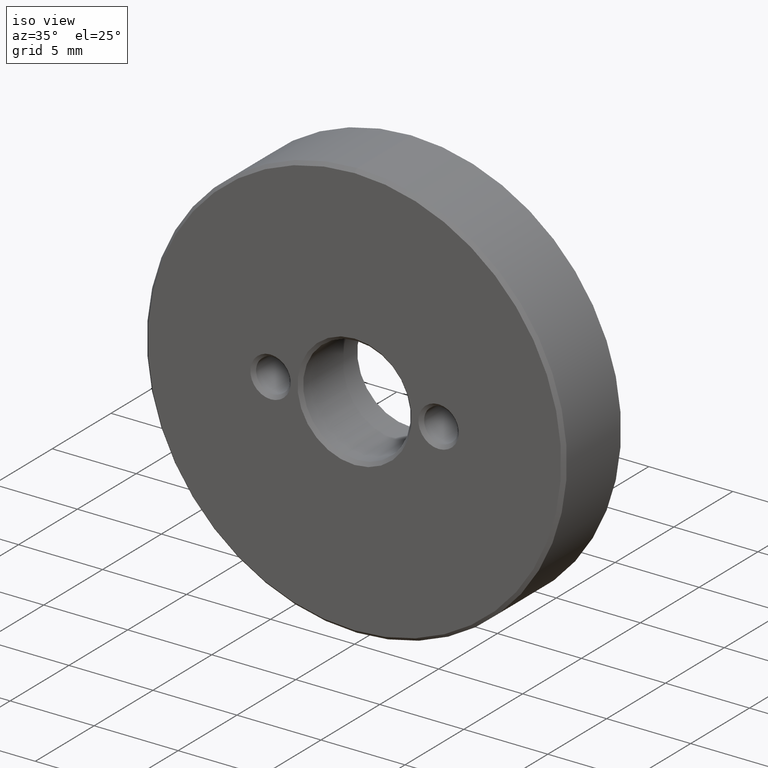
[diagram: clean part render]
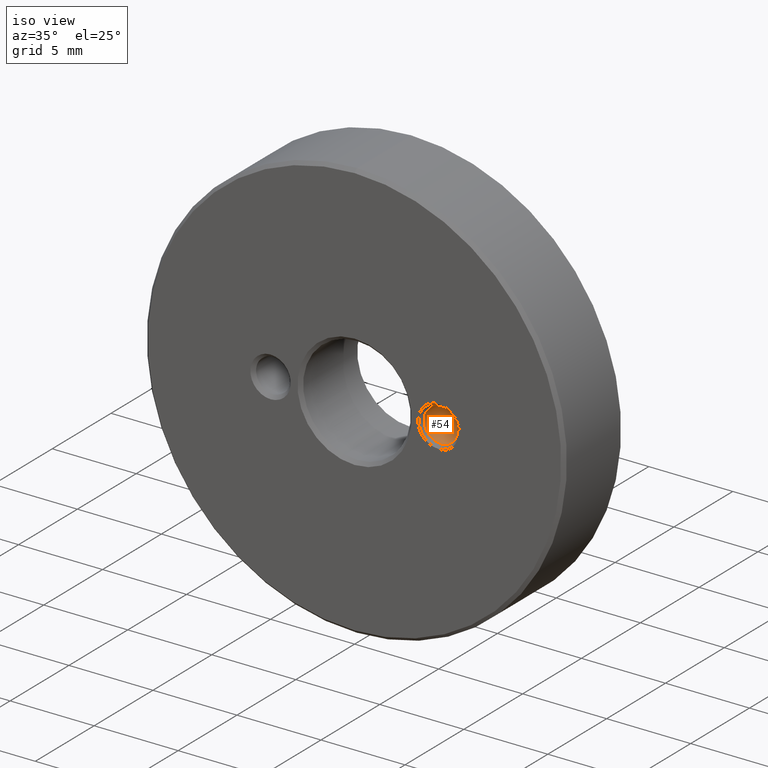
[diagram: same view with one face highlighted and labeled with its STEP entity id]
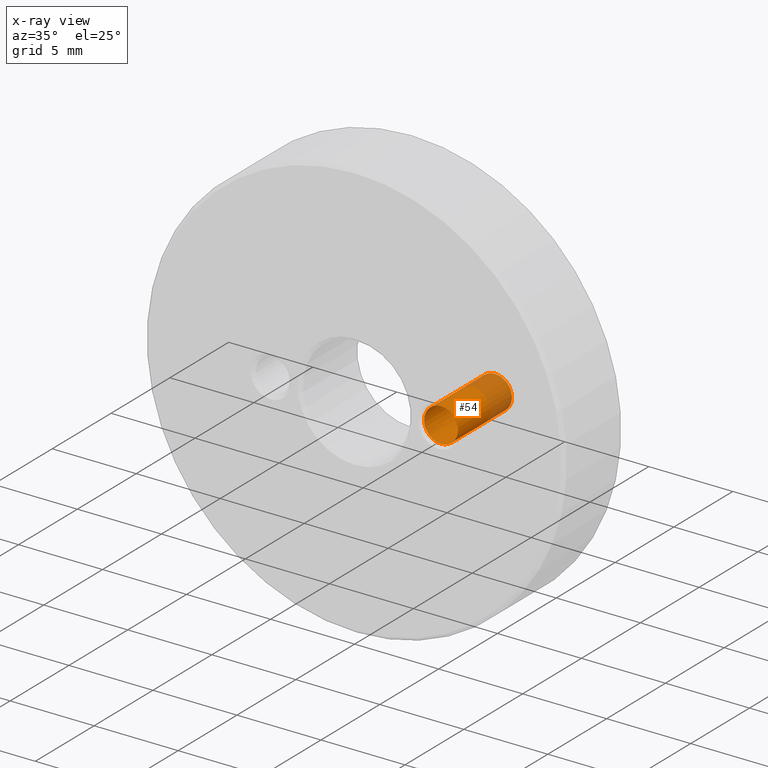
[diagram: x-ray of the same camera — body ghosted, the highlighted face saturated]
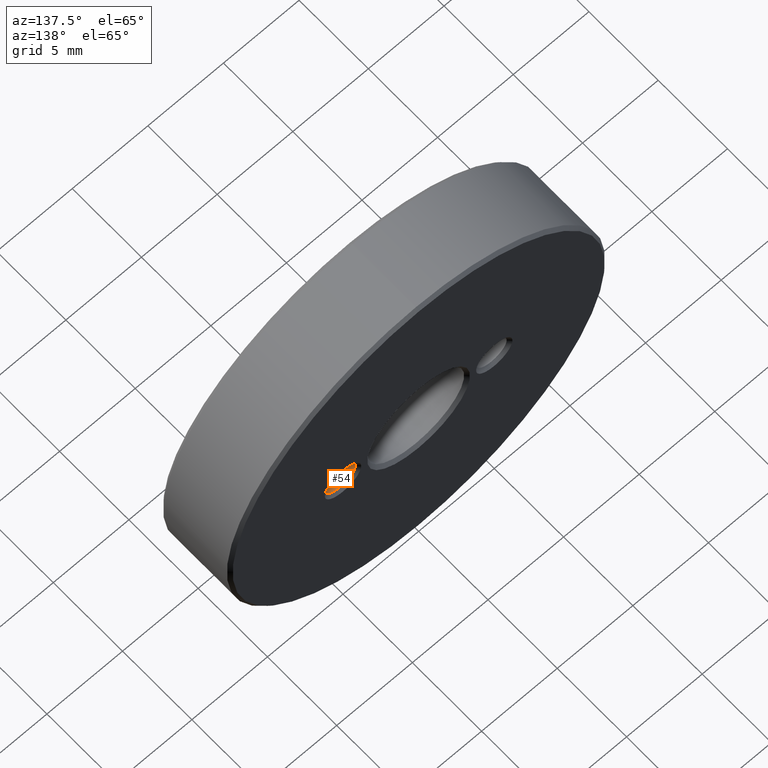
[diagram: same view with one face highlighted and labeled with its STEP entity id]
A machine part, iso view. The second image highlights one B-rep face of the part: STEP entity #54.
The next image is the same camera in x-ray: the body ghosted, the highlighted face saturated — about 29% of this face is hidden behind the body in this view.
A second angle (auxiliary view) of the same face is appended — the face is thin or edge-on in the first view.
In plain terms, the highlighted cylindrical surface (bore or boss wall) has radius 1.005 mm, axis along (-0, -1, -0).
Its self-contained STEP definition (entity closure, byte-faithful):
#46 = EDGE_CURVE ( 'NONE', #83, #83, #381, .T. ) ;
#54 = ADVANCED_FACE ( 'NONE', ( #269, #387 ), #358, .F. ) ;
#57 = CARTESIAN_POINT ( 'NONE',  ( 5.000000000000000000, 0.1999999999999979294, 1.004999999999998117 ) ) ;
#67 = EDGE_CURVE ( 'NONE', #78, #78, #107, .T. ) ;
#72 = CARTESIAN_POINT ( 'NONE',  ( 5.000000000000000000, 0.1999999999999979294, -1.836970198721029194E-15 ) ) ;
#73 = AXIS2_PLACEMENT_3D ( 'NONE', #111, #266, #146 ) ;
#75 = ORIENTED_EDGE ( 'NONE', *, *, #67, .T. ) ;
#78 = VERTEX_POINT ( 'NONE', #57 ) ;
#83 = VERTEX_POINT ( 'NONE', #207 ) ;
#104 = CARTESIAN_POINT ( 'NONE',  ( 5.000000000000000000, 5.000000000000000000, -1.836970198721029194E-15 ) ) ;
#107 = CIRCLE ( 'NONE', #305, 1.004999999999999893 ) ;
#111 = CARTESIAN_POINT ( 'NONE',  ( 5.000000000000000000, 4.800000000000004263, -1.836970198721029194E-15 ) ) ;
#146 = DIRECTION ( 'NONE',  ( 0.000000000000000000, 0.000000000000000000, 1.000000000000000000 ) ) ;
#179 = ORIENTED_EDGE ( 'NONE', *, *, #46, .T. ) ;
#207 = CARTESIAN_POINT ( 'NONE',  ( 5.000000000000000000, 4.800000000000004263, 1.004999999999998117 ) ) ;
#228 = DIRECTION ( 'NONE',  ( 0.000000000000000000, 0.000000000000000000, -1.000000000000000000 ) ) ;
#266 = DIRECTION ( 'NONE',  ( 0.000000000000000000, 1.000000000000000000, 0.000000000000000000 ) ) ;
#269 = FACE_OUTER_BOUND ( 'NONE', #303, .T. ) ;
#294 = DIRECTION ( 'NONE',  ( 0.000000000000000000, 0.000000000000000000, 1.000000000000000000 ) ) ;
#303 = EDGE_LOOP ( 'NONE', ( #75 ) ) ;
#305 = AXIS2_PLACEMENT_3D ( 'NONE', #72, #321, #294 ) ;
#311 = AXIS2_PLACEMENT_3D ( 'NONE', #104, #346, #228 ) ;
#321 = DIRECTION ( 'NONE',  ( -0.000000000000000000, -1.000000000000000000, -0.000000000000000000 ) ) ;
#346 = DIRECTION ( 'NONE',  ( -0.000000000000000000, -1.000000000000000000, -0.000000000000000000 ) ) ;
#358 = CYLINDRICAL_SURFACE ( 'NONE', #311, 1.004999999999999893 ) ;
#380 = EDGE_LOOP ( 'NONE', ( #179 ) ) ;
#381 = CIRCLE ( 'NONE', #73, 1.004999999999999893 ) ;
#387 = FACE_OUTER_BOUND ( 'NONE', #380, .T. ) ;